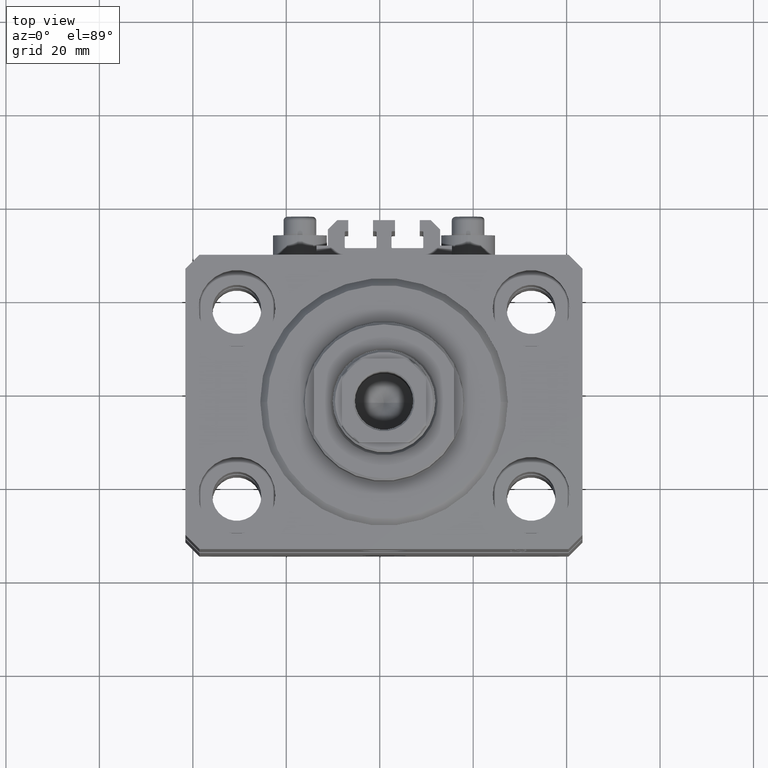
[diagram: clean part render]
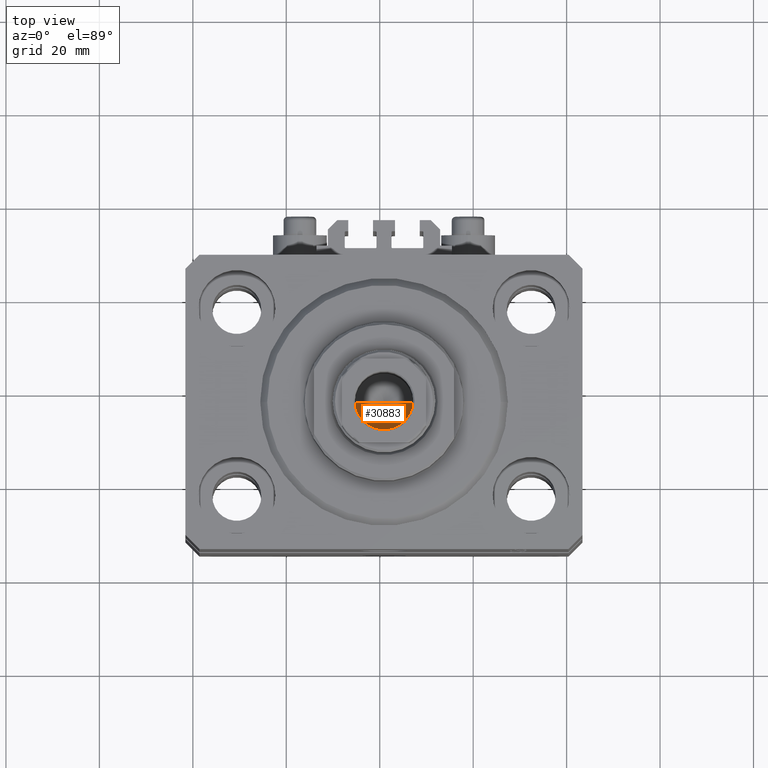
[diagram: same view with one face highlighted and labeled with its STEP entity id]
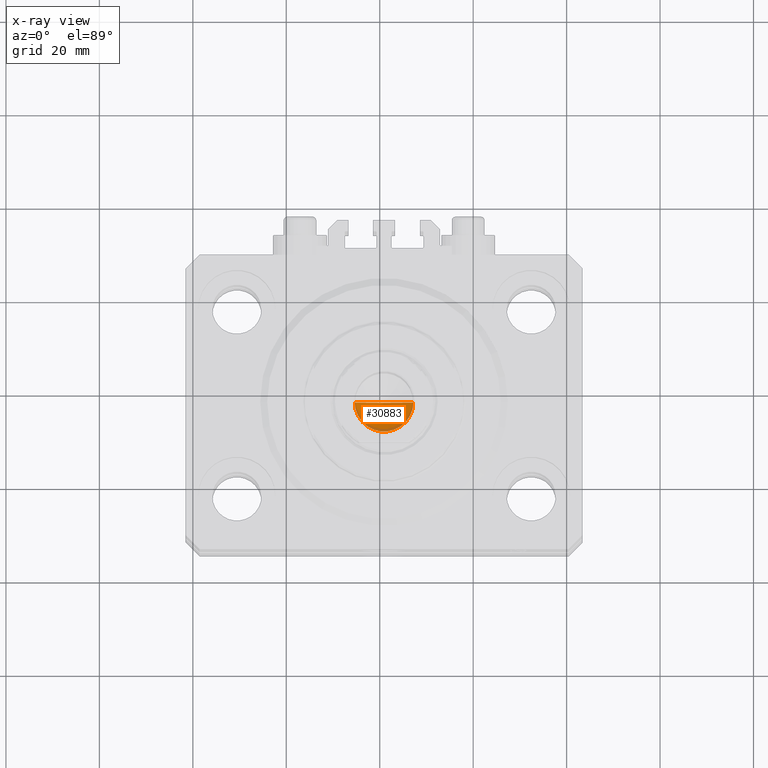
[diagram: x-ray of the same camera — body ghosted, the highlighted face saturated]
A machine part, top view. The second image highlights one B-rep face of the part: STEP entity #30883.
The next image is the same camera in x-ray: the body ghosted, the highlighted face saturated — about 9% of this face is hidden behind the body in this view.
In plain terms, the highlighted conical surface has half-angle 59 deg.
Its self-contained STEP definition (entity closure, byte-faithful):
#1227 = LINE ( 'NONE', #2166, #45690 ) ;
#2166 = CARTESIAN_POINT ( 'NONE',  ( 6.249999999999993783, 0.000000000000000000, 73.59999999999999432 ) ) ;
#2316 = VECTOR ( 'NONE', #32459, 1000.000000000000114 ) ;
#4625 = EDGE_LOOP ( 'NONE', ( #35701, #41950, #14624 ) ) ;
#6398 = VERTEX_POINT ( 'NONE', #31741 ) ;
#7964 = AXIS2_PLACEMENT_3D ( 'NONE', #13772, #39516, #27983 ) ;
#8251 = EDGE_CURVE ( 'NONE', #6398, #10417, #46902, .T. ) ;
#8663 = CIRCLE ( 'NONE', #12512, 6.249999999999993783 ) ;
#8908 = VERTEX_POINT ( 'NONE', #42178 ) ;
#10417 = VERTEX_POINT ( 'NONE', #46212 ) ;
#12512 = AXIS2_PLACEMENT_3D ( 'NONE', #38702, #30783, #41840 ) ;
#13772 = CARTESIAN_POINT ( 'NONE',  ( 0.000000000000000000, 0.000000000000000000, 73.59999999999999432 ) ) ;
#14624 = ORIENTED_EDGE ( 'NONE', *, *, #26360, .T. ) ;
#16853 = DIRECTION ( 'NONE',  ( 0.8571673007021122226, 0.000000000000000000, 0.5150380749100541555 ) ) ;
#20290 = FACE_OUTER_BOUND ( 'NONE', #4625, .T. ) ;
#26360 = EDGE_CURVE ( 'NONE', #10417, #8908, #8663, .T. ) ;
#27983 = DIRECTION ( 'NONE',  ( 1.000000000000000000, 0.000000000000000000, 0.000000000000000000 ) ) ;
#30783 = DIRECTION ( 'NONE',  ( -0.000000000000000000, -0.000000000000000000, 1.000000000000000000 ) ) ;
#30883 = ADVANCED_FACE ( 'NONE', ( #20290 ), #37167, .F. ) ;
#31741 = CARTESIAN_POINT ( 'NONE',  ( -7.434177670704979810E-15, 0.000000000000000000, 69.84462113107775849 ) ) ;
#32459 = DIRECTION ( 'NONE',  ( -0.8571673007021122226, 1.049727191138618696E-16, 0.5150380749100541555 ) ) ;
#33309 = EDGE_CURVE ( 'NONE', #6398, #8908, #1227, .T. ) ;
#35701 = ORIENTED_EDGE ( 'NONE', *, *, #33309, .F. ) ;
#37167 = CONICAL_SURFACE ( 'NONE', #7964, 6.249999999999993783, 1.029744258676654534 ) ;
#38702 = CARTESIAN_POINT ( 'NONE',  ( 0.000000000000000000, 0.000000000000000000, 73.59999999999999432 ) ) ;
#39516 = DIRECTION ( 'NONE',  ( -0.000000000000000000, -0.000000000000000000, 1.000000000000000000 ) ) ;
#41840 = DIRECTION ( 'NONE',  ( 1.000000000000000000, 0.000000000000000000, 0.000000000000000000 ) ) ;
#41950 = ORIENTED_EDGE ( 'NONE', *, *, #8251, .T. ) ;
#42178 = CARTESIAN_POINT ( 'NONE',  ( 6.249999999999993783, 0.000000000000000000, 73.59999999999999432 ) ) ;
#45690 = VECTOR ( 'NONE', #16853, 1000.000000000000114 ) ;
#46212 = CARTESIAN_POINT ( 'NONE',  ( -6.249999999999993783, 7.654042494670949718E-16, 73.59999999999999432 ) ) ;
#46902 = LINE ( 'NONE', #47131, #2316 ) ;
#47131 = CARTESIAN_POINT ( 'NONE',  ( -6.249999999999993783, 7.654042494670949718E-16, 73.59999999999999432 ) ) ;